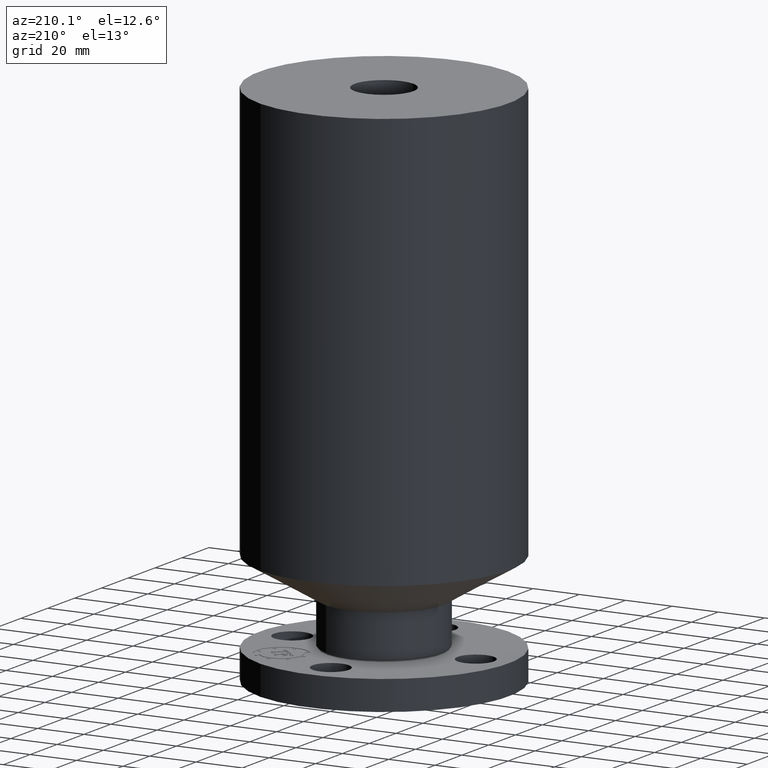
[diagram: clean part render]
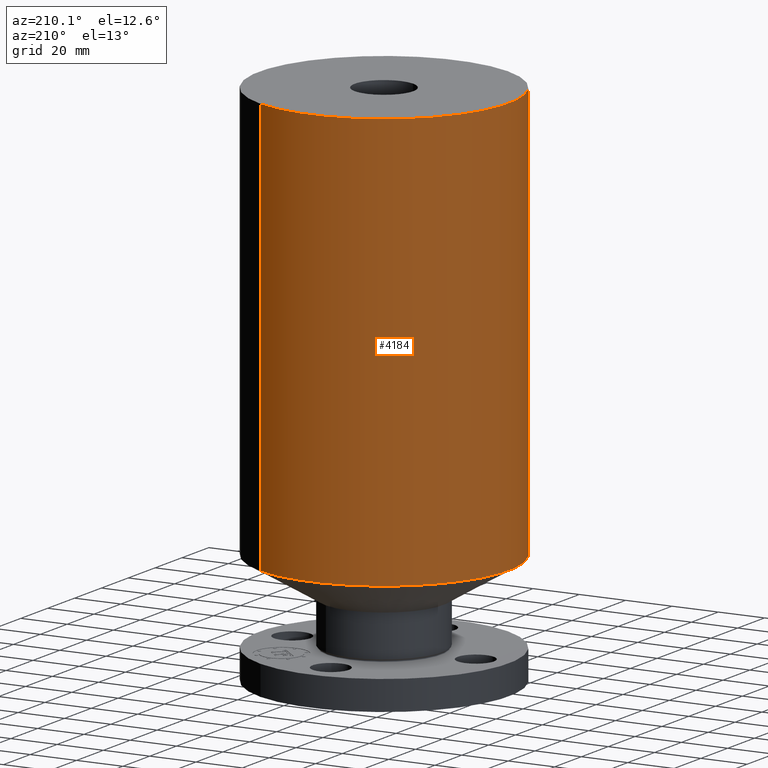
[diagram: same view with one face highlighted and labeled with its STEP entity id]
A machine part, auxiliary view. The second image highlights one B-rep face of the part: STEP entity #4184.
In plain terms, the highlighted cylindrical surface (partial cylindrical patch) has radius 53.975 mm, axis along (0, 0, -1).
Its self-contained STEP definition (entity closure, byte-faithful):
#213=AXIS2_PLACEMENT_3D('Cylinder Axis2P3D',#210,#211,#212) ;
#1294=AXIS2_PLACEMENT_3D('Circle Axis2P3D',#1292,#1293,$) ;
#4175=AXIS2_PLACEMENT_3D('Circle Axis2P3D',#4173,#4174,$) ;
#210=CARTESIAN_POINT('Axis2P3D Location',(0.,0.,4.43750000002)) ;
#1270=CARTESIAN_POINT('Vertex',(1.01877926954,1.86486294402,1.89701905285)) ;
#1277=CARTESIAN_POINT('Vertex',(-1.01877926954,-1.86486294402,1.89701905285)) ;
#1292=CARTESIAN_POINT('Axis2P3D Location',(0.,0.,1.89701905285)) ;
#4147=CARTESIAN_POINT('Line Origine',(1.01877926954,1.86486294402,5.41725952644)) ;
#4151=CARTESIAN_POINT('Vertex',(1.01877926954,1.86486294402,8.93750000004)) ;
#4158=CARTESIAN_POINT('Vertex',(-1.01877926954,-1.86486294402,8.93750000004)) ;
#4161=CARTESIAN_POINT('Line Origine',(-1.01877926954,-1.86486294402,5.41725952644)) ;
#4173=CARTESIAN_POINT('Axis2P3D Location',(0.,0.,8.93750000004)) ;
#211=DIRECTION('Axis2P3D Direction',(0.,0.,-0.0393700787402)) ;
#212=DIRECTION('Axis2P3D XDirection',(-0.0188750212049,-0.0345504945626,0.)) ;
#1293=DIRECTION('Axis2P3D Direction',(-0.,0.,0.0393700787402)) ;
#4148=DIRECTION('Vector Direction',(0.,0.,-0.0393700787402)) ;
#4162=DIRECTION('Vector Direction',(0.,0.,-0.0393700787402)) ;
#4174=DIRECTION('Axis2P3D Direction',(0.,0.,-0.0393700787402)) ;
#4149=VECTOR('Line Direction',#4148,0.0393700787402) ;
#4163=VECTOR('Line Direction',#4162,0.0393700787402) ;
#4179=ORIENTED_EDGE('',*,*,#1296,.F.) ;
#4180=ORIENTED_EDGE('',*,*,#4165,.T.) ;
#4181=ORIENTED_EDGE('',*,*,#4177,.T.) ;
#4182=ORIENTED_EDGE('',*,*,#4153,.F.) ;
#4184=ADVANCED_FACE('PartBody',(#4183),#214,.T.) ;
#1295=CIRCLE('generated circle',#1294,2.12500000001) ;
#4176=CIRCLE('generated circle',#4175,2.12500000001) ;
#214=CYLINDRICAL_SURFACE('generated cylinder',#213,2.12500000001) ;
#1296=EDGE_CURVE('',#1278,#1271,#1295,.F.) ;
#4153=EDGE_CURVE('',#1271,#4152,#4150,.F.) ;
#4165=EDGE_CURVE('',#1278,#4159,#4164,.F.) ;
#4177=EDGE_CURVE('',#4159,#4152,#4176,.T.) ;
#4178=EDGE_LOOP('',(#4179,#4180,#4181,#4182)) ;
#4183=FACE_OUTER_BOUND('',#4178,.T.) ;
#4150=LINE('Line',#4147,#4149) ;
#4164=LINE('Line',#4161,#4163) ;
#1271=VERTEX_POINT('',#1270) ;
#1278=VERTEX_POINT('',#1277) ;
#4152=VERTEX_POINT('',#4151) ;
#4159=VERTEX_POINT('',#4158) ;